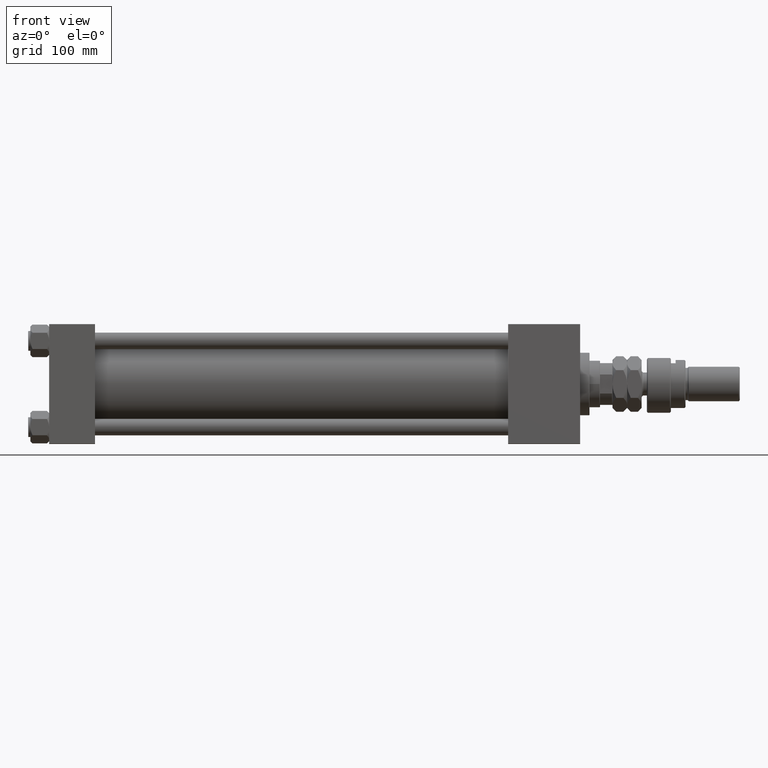
[diagram: clean part render]
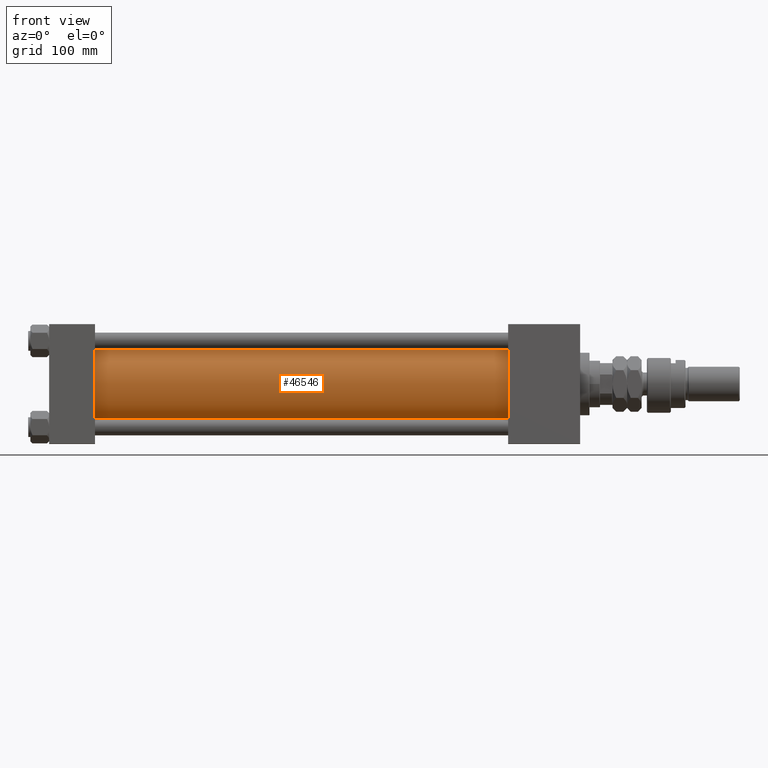
[diagram: same view with one face highlighted and labeled with its STEP entity id]
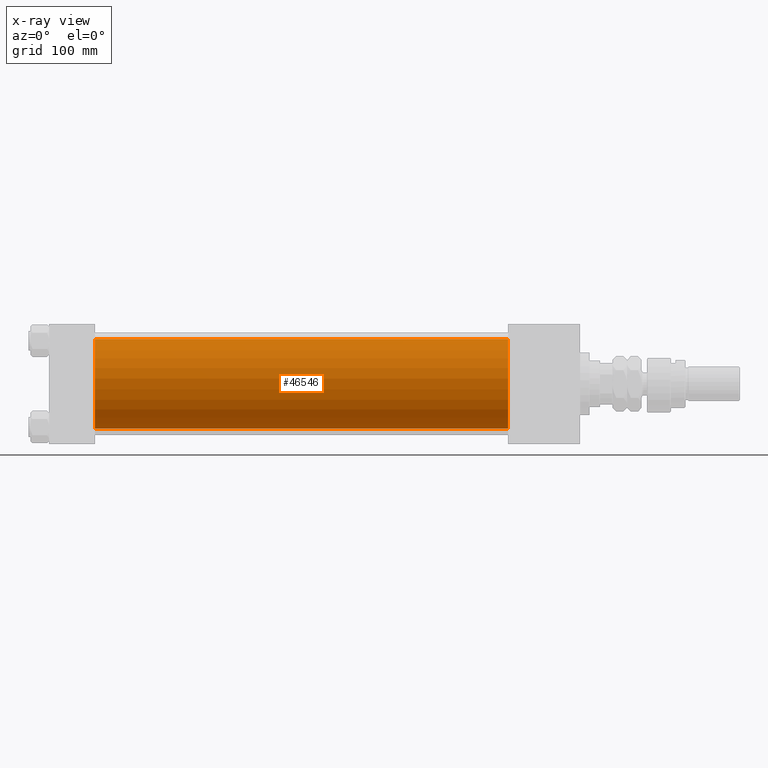
[diagram: x-ray of the same camera — body ghosted, the highlighted face saturated]
A machine part, front view. The second image highlights one B-rep face of the part: STEP entity #46546.
The next image is the same camera in x-ray: the body ghosted, the highlighted face saturated — about 0% of this face is hidden behind the body in this view.
In plain terms, the highlighted cylindrical surface (partial cylindrical patch) has radius 43 mm, axis along (-1, -0, -0).
Its self-contained STEP definition (entity closure, byte-faithful):
#599 = DIRECTION ( 'NONE',  ( 1.000000000000000000, -0.000000000000000000, 0.000000000000000000 ) ) ;
#1725 = CARTESIAN_POINT ( 'NONE',  ( 440.0000000000000000, -2.602085213965210642E-15, 43.00000000000000000 ) ) ;
#2523 = CYLINDRICAL_SURFACE ( 'NONE', #36557, 43.00000000000000000 ) ;
#4080 = CARTESIAN_POINT ( 'NONE',  ( 43.99999999999998579, 2.663896022368408223E-15, -43.00000000000000000 ) ) ;
#5640 = DIRECTION ( 'NONE',  ( 1.000000000000000000, 0.000000000000000000, 0.000000000000000000 ) ) ;
#6845 = CARTESIAN_POINT ( 'NONE',  ( 440.0000000000000000, -2.602085213965210642E-15, 0.000000000000000000 ) ) ;
#9160 = ORIENTED_EDGE ( 'NONE', *, *, #11882, .T. ) ;
#9858 = AXIS2_PLACEMENT_3D ( 'NONE', #34699, #5640, #22227 ) ;
#10162 = EDGE_CURVE ( 'NONE', #49940, #52619, #16162, .T. ) ;
#11882 = EDGE_CURVE ( 'NONE', #48338, #37040, #52249, .T. ) ;
#14480 = DIRECTION ( 'NONE',  ( -1.000000000000000000, -0.000000000000000000, -0.000000000000000000 ) ) ;
#14489 = DIRECTION ( 'NONE',  ( -1.000000000000000000, -0.000000000000000000, -0.000000000000000000 ) ) ;
#16162 = LINE ( 'NONE', #49565, #19184 ) ;
#19184 = VECTOR ( 'NONE', #49294, 1000.000000000000000 ) ;
#19517 = ORIENTED_EDGE ( 'NONE', *, *, #10162, .F. ) ;
#20870 = CARTESIAN_POINT ( 'NONE',  ( 440.0000000000000000, 2.663896022368408223E-15, -43.00000000000000000 ) ) ;
#21510 = DIRECTION ( 'NONE',  ( 0.000000000000000000, 0.000000000000000000, 1.000000000000000000 ) ) ;
#22227 = DIRECTION ( 'NONE',  ( 0.000000000000000000, 0.000000000000000000, -1.000000000000000000 ) ) ;
#23964 = FACE_OUTER_BOUND ( 'NONE', #40281, .T. ) ;
#28568 = EDGE_CURVE ( 'NONE', #48338, #49940, #53234, .T. ) ;
#33018 = VECTOR ( 'NONE', #14489, 1000.000000000000000 ) ;
#33545 = ORIENTED_EDGE ( 'NONE', *, *, #28568, .F. ) ;
#34306 = CARTESIAN_POINT ( 'NONE',  ( 43.99999999999998579, -2.602085213965210642E-15, 43.00000000000000000 ) ) ;
#34699 = CARTESIAN_POINT ( 'NONE',  ( 440.0000000000000000, -2.602085213965210642E-15, 0.000000000000000000 ) ) ;
#36557 = AXIS2_PLACEMENT_3D ( 'NONE', #6845, #14480, #39995 ) ;
#36583 = EDGE_CURVE ( 'NONE', #37040, #52619, #43011, .T. ) ;
#37040 = VERTEX_POINT ( 'NONE', #34306 ) ;
#37799 = CARTESIAN_POINT ( 'NONE',  ( 43.99999999999998579, -2.602085213965210642E-15, 0.000000000000000000 ) ) ;
#39294 = CARTESIAN_POINT ( 'NONE',  ( 440.0000000000000000, -2.602085213965210642E-15, 43.00000000000000000 ) ) ;
#39995 = DIRECTION ( 'NONE',  ( 0.000000000000000000, 0.000000000000000000, 1.000000000000000000 ) ) ;
#40281 = EDGE_LOOP ( 'NONE', ( #19517, #33545, #9160, #50074 ) ) ;
#41273 = AXIS2_PLACEMENT_3D ( 'NONE', #37799, #599, #21510 ) ;
#43011 = CIRCLE ( 'NONE', #41273, 43.00000000000000000 ) ;
#46546 = ADVANCED_FACE ( 'NONE', ( #23964 ), #2523, .T. ) ;
#48338 = VERTEX_POINT ( 'NONE', #39294 ) ;
#49294 = DIRECTION ( 'NONE',  ( -1.000000000000000000, -0.000000000000000000, -0.000000000000000000 ) ) ;
#49565 = CARTESIAN_POINT ( 'NONE',  ( 440.0000000000000000, 2.663896022368408223E-15, -43.00000000000000000 ) ) ;
#49940 = VERTEX_POINT ( 'NONE', #20870 ) ;
#50074 = ORIENTED_EDGE ( 'NONE', *, *, #36583, .T. ) ;
#52249 = LINE ( 'NONE', #1725, #33018 ) ;
#52619 = VERTEX_POINT ( 'NONE', #4080 ) ;
#53234 = CIRCLE ( 'NONE', #9858, 43.00000000000000000 ) ;